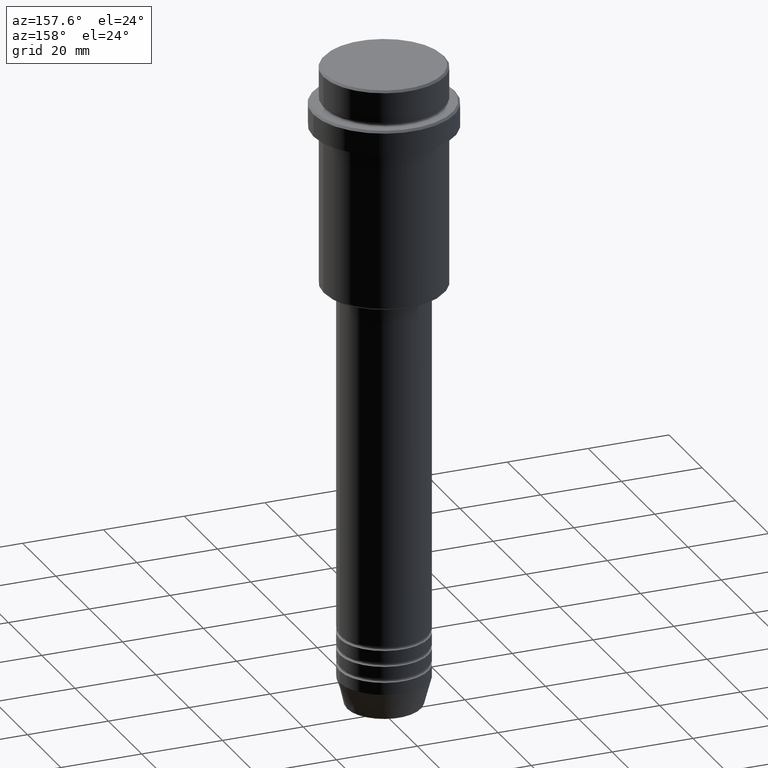
[diagram: clean part render]
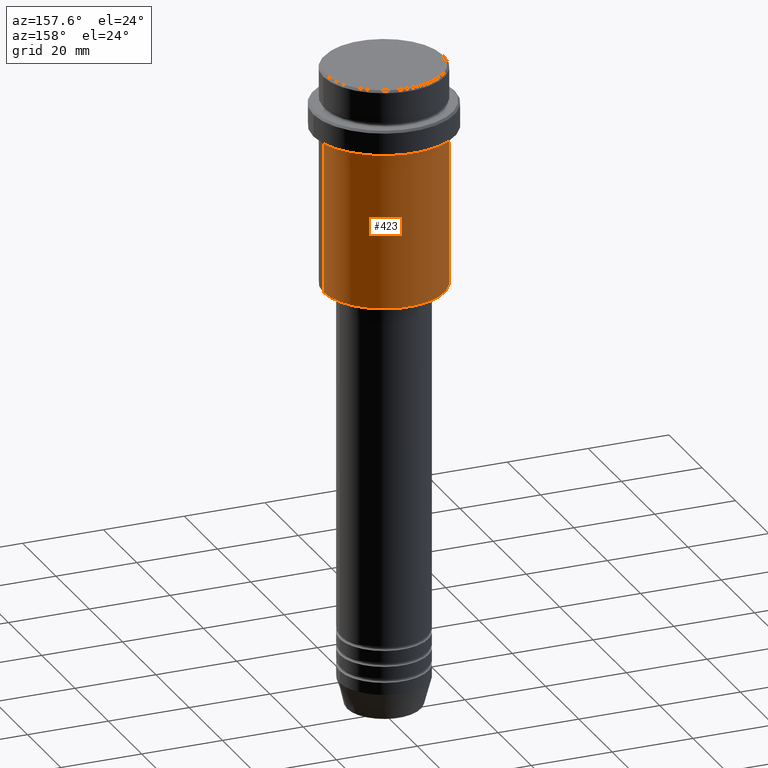
[diagram: same view with one face highlighted and labeled with its STEP entity id]
A machine part, auxiliary view. The second image highlights one B-rep face of the part: STEP entity #423.
In plain terms, the highlighted cylindrical surface (partial cylindrical patch) has radius 15 mm, axis along (-0, -0, 1).
Its self-contained STEP definition (entity closure, byte-faithful):
#42 = EDGE_CURVE ( 'NONE', #961, #1016, #799, .T. ) ;
#50 = EDGE_CURVE ( 'NONE', #56, #1185, #185, .T. ) ;
#56 = VERTEX_POINT ( 'NONE', #476 ) ;
#76 = CARTESIAN_POINT ( 'NONE',  ( -15.00000000000000000, 1.836970198721029589E-15, -54.49999999999993605 ) ) ;
#90 = ORIENTED_EDGE ( 'NONE', *, *, #42, .T. ) ;
#121 = AXIS2_PLACEMENT_3D ( 'NONE', #789, #254, #1135 ) ;
#185 = CIRCLE ( 'NONE', #982, 15.00000000000000178 ) ;
#247 = CARTESIAN_POINT ( 'NONE',  ( 15.00000000000000000, 0.000000000000000000, 0.000000000000000000 ) ) ;
#254 = DIRECTION ( 'NONE',  ( -0.000000000000000000, -0.000000000000000000, 1.000000000000000000 ) ) ;
#270 = CARTESIAN_POINT ( 'NONE',  ( 0.000000000000000000, 0.000000000000000000, 0.000000000000000000 ) ) ;
#282 = ORIENTED_EDGE ( 'NONE', *, *, #524, .T. ) ;
#381 = DIRECTION ( 'NONE',  ( -0.000000000000000000, -0.000000000000000000, 1.000000000000000000 ) ) ;
#423 = ADVANCED_FACE ( 'NONE', ( #676 ), #1356, .T. ) ;
#476 = CARTESIAN_POINT ( 'NONE',  ( 15.00000000000000178, 0.000000000000000000, -16.00000000000000000 ) ) ;
#518 = CARTESIAN_POINT ( 'NONE',  ( -15.00000000000000355, 1.836970198721029983E-15, -16.00000000000000000 ) ) ;
#524 = EDGE_CURVE ( 'NONE', #1016, #1185, #953, .T. ) ;
#566 = DIRECTION ( 'NONE',  ( 1.000000000000000000, 0.000000000000000000, 0.000000000000000000 ) ) ;
#568 = DIRECTION ( 'NONE',  ( -0.000000000000000000, -0.000000000000000000, 1.000000000000000000 ) ) ;
#576 = LINE ( 'NONE', #247, #669 ) ;
#626 = CARTESIAN_POINT ( 'NONE',  ( -15.00000000000000000, 1.836970198721029589E-15, 0.000000000000000000 ) ) ;
#627 = ORIENTED_EDGE ( 'NONE', *, *, #50, .F. ) ;
#657 = ORIENTED_EDGE ( 'NONE', *, *, #1252, .F. ) ;
#669 = VECTOR ( 'NONE', #568, 1000.000000000000000 ) ;
#670 = CARTESIAN_POINT ( 'NONE',  ( 0.000000000000000000, 0.000000000000000000, -16.00000000000000000 ) ) ;
#676 = FACE_OUTER_BOUND ( 'NONE', #1010, .T. ) ;
#683 = DIRECTION ( 'NONE',  ( -0.000000000000000000, -0.000000000000000000, 1.000000000000000000 ) ) ;
#789 = CARTESIAN_POINT ( 'NONE',  ( 0.000000000000000000, 0.000000000000000000, -54.49999999999993605 ) ) ;
#799 = CIRCLE ( 'NONE', #121, 15.00000000000000000 ) ;
#953 = LINE ( 'NONE', #626, #1220 ) ;
#961 = VERTEX_POINT ( 'NONE', #1027 ) ;
#982 = AXIS2_PLACEMENT_3D ( 'NONE', #670, #683, #1351 ) ;
#1010 = EDGE_LOOP ( 'NONE', ( #90, #282, #627, #657 ) ) ;
#1016 = VERTEX_POINT ( 'NONE', #76 ) ;
#1027 = CARTESIAN_POINT ( 'NONE',  ( 15.00000000000000000, 0.000000000000000000, -54.49999999999993605 ) ) ;
#1060 = AXIS2_PLACEMENT_3D ( 'NONE', #270, #1140, #566 ) ;
#1135 = DIRECTION ( 'NONE',  ( -1.000000000000000000, 0.000000000000000000, 0.000000000000000000 ) ) ;
#1140 = DIRECTION ( 'NONE',  ( -0.000000000000000000, -0.000000000000000000, 1.000000000000000000 ) ) ;
#1185 = VERTEX_POINT ( 'NONE', #518 ) ;
#1220 = VECTOR ( 'NONE', #381, 1000.000000000000000 ) ;
#1252 = EDGE_CURVE ( 'NONE', #961, #56, #576, .T. ) ;
#1351 = DIRECTION ( 'NONE',  ( 1.000000000000000000, 0.000000000000000000, 0.000000000000000000 ) ) ;
#1356 = CYLINDRICAL_SURFACE ( 'NONE', #1060, 15.00000000000000000 ) ;